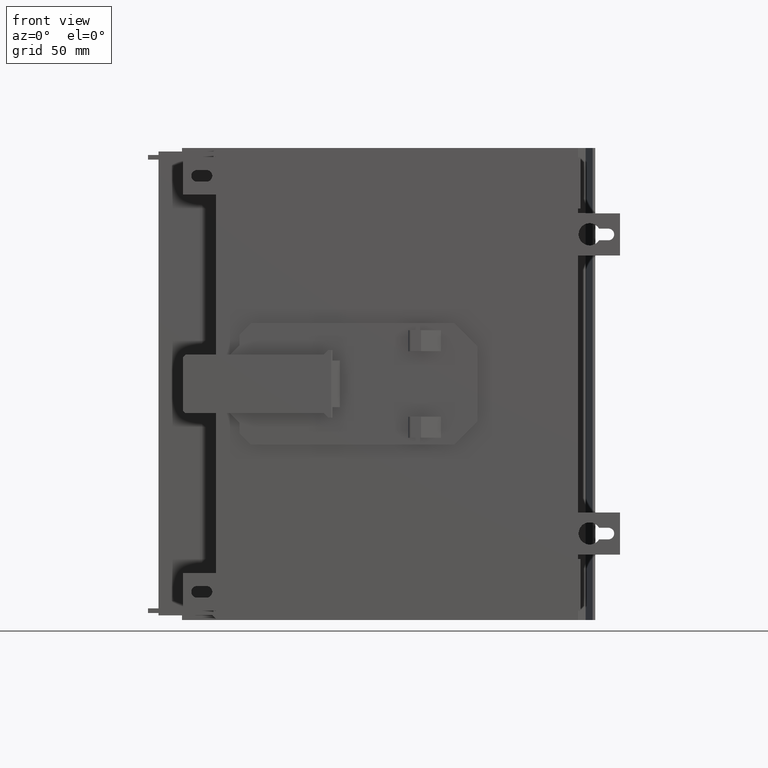
[diagram: clean part render]
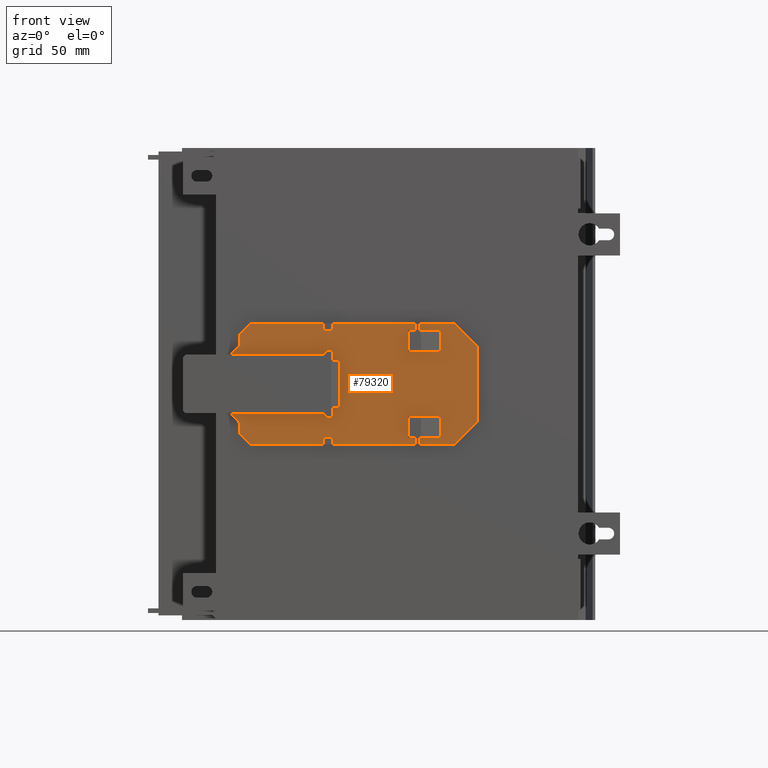
[diagram: same view with one face highlighted and labeled with its STEP entity id]
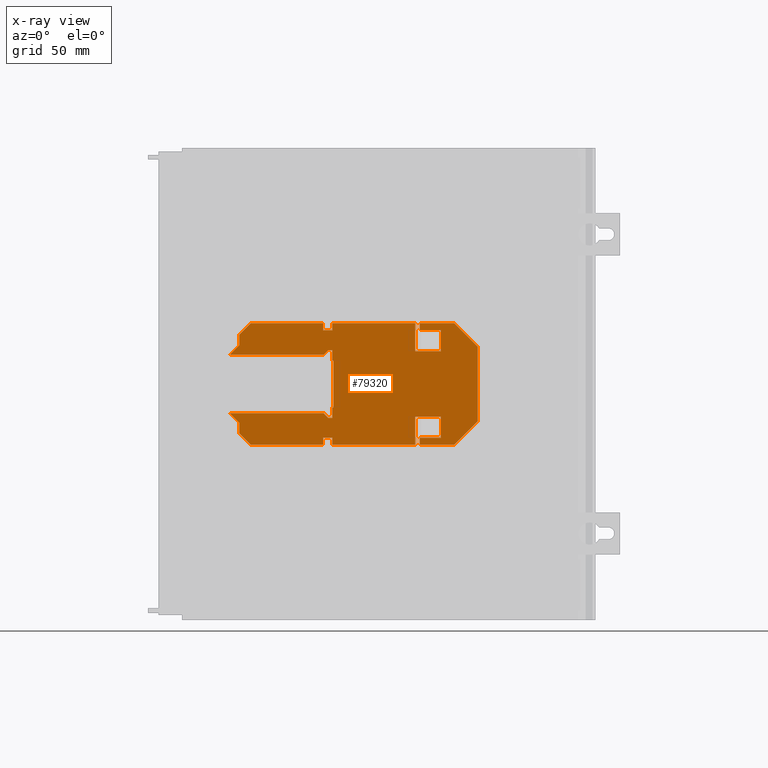
[diagram: x-ray of the same camera — body ghosted, the highlighted face saturated]
A machine part, front view. The second image highlights one B-rep face of the part: STEP entity #79320.
The next image is the same camera in x-ray: the body ghosted, the highlighted face saturated — about 0% of this face is hidden behind the body in this view.
In plain terms, the highlighted planar face has unit normal (0, -1, 0).
Its self-contained STEP definition (entity closure, byte-faithful):
#74370=CARTESIAN_POINT('',(4.,-4.,-5.04999999999997));
#74380=VERTEX_POINT('',#74370);
#74460=CARTESIAN_POINT('',(8.00000000000001,-4.,-9.04999999999998));
#74470=VERTEX_POINT('',#74460);
#74500=CARTESIAN_POINT('',(4.,-4.,-5.04999999999998));
#74510=DIRECTION('',(0.707106781186548,0.,-0.707106781186548));
#74520=VECTOR('',#74510,5.656854249492);
#74530=LINE('',#74500,#74520);
#74540=EDGE_CURVE('',#74380,#74470,#74530,.T.);
#74750=CARTESIAN_POINT('',(12.5,-4.,-9.04999999999998));
#74760=VERTEX_POINT('',#74750);
#74840=CARTESIAN_POINT('',(17.5,-4.,-14.05));
#74850=VERTEX_POINT('',#74840);
#74880=CARTESIAN_POINT('',(-8.5,-4.,11.95));
#74890=DIRECTION('',(-0.707106781186548,0.,0.707106781186548));
#74900=VECTOR('',#74890,1.);
#74910=LINE('',#74880,#74900);
#74920=EDGE_CURVE('',#74850,#74760,#74910,.T.);
#75130=CARTESIAN_POINT('',(17.5,-4.,-44.9));
#75140=VERTEX_POINT('',#75130);
#75190=CARTESIAN_POINT('',(17.5,-4.,-66.65));
#75200=DIRECTION('',(0.,0.,1.));
#75210=VECTOR('',#75200,1.);
#75220=LINE('',#75190,#75210);
#75230=EDGE_CURVE('',#75140,#74850,#75220,.T.);
#75310=CARTESIAN_POINT('',(17.5,-4.,-101.05));
#75320=VERTEX_POINT('',#75310);
#75350=CARTESIAN_POINT('',(17.5,-4.,-86.4));
#75360=VERTEX_POINT('',#75350);
#75370=EDGE_CURVE('',#75320,#75360,#75220,.T.);
#75590=CARTESIAN_POINT('',(17.5,-4.,-84.4));
#75600=VERTEX_POINT('',#75590);
#75630=CARTESIAN_POINT('',(17.5,-4.,-48.9));
#75640=VERTEX_POINT('',#75630);
#75650=EDGE_CURVE('',#75600,#75640,#75220,.T.);
#76000=CARTESIAN_POINT('',(-24.5,-4.,-111.05));
#76010=VERTEX_POINT('',#76000);
#76040=CARTESIAN_POINT('',(-8.5,-4.,-111.05));
#76050=DIRECTION('',(1.,0.,0.));
#76060=VECTOR('',#76050,1.);
#76070=LINE('',#76040,#76060);
#76080=CARTESIAN_POINT('',(7.50000000000001,-4.,-111.05));
#76090=VERTEX_POINT('',#76080);
#76100=EDGE_CURVE('',#76010,#76090,#76070,.T.);
#76380=CARTESIAN_POINT('',(-34.5,-4.,-101.05));
#76390=VERTEX_POINT('',#76380);
#76420=CARTESIAN_POINT('',(-8.5,-4.,-127.05));
#76430=DIRECTION('',(0.707106781186548,0.,-0.707106781186548));
#76440=VECTOR('',#76430,1.);
#76450=LINE('',#76420,#76440);
#76460=EDGE_CURVE('',#76390,#76010,#76450,.T.);
#76600=CARTESIAN_POINT('',(-2.15238799999999,-4.,-29.997329));
#76610=DIRECTION('',(0.,-1.,0.));
#76620=DIRECTION('',(0.,0.,-1.));
#76630=AXIS2_PLACEMENT_3D('',#76600,#76610,#76620);
#76640=PLANE('',#76630);
#76650=CARTESIAN_POINT('',(-8.5,-4.,-9.04999999999998));
#76660=DIRECTION('',(-1.,0.,0.));
#76670=VECTOR('',#76660,1.);
#76680=LINE('',#76650,#76670);
#76690=EDGE_CURVE('',#74760,#74470,#76680,.T.);
#76700=ORIENTED_EDGE('',*,*,#76690,.T.);
#76710=ORIENTED_EDGE('',*,*,#74920,.T.);
#76720=ORIENTED_EDGE('',*,*,#75230,.T.);
#76730=CARTESIAN_POINT('',(-8.5,-4.,-44.8999999999999));
#76740=DIRECTION('',(1.,0.,0.));
#76750=VECTOR('',#76740,1.);
#76760=LINE('',#76730,#76750);
#76770=CARTESIAN_POINT('',(14.5,-4.,-44.9));
#76780=VERTEX_POINT('',#76770);
#76790=EDGE_CURVE('',#76780,#75140,#76760,.T.);
#76800=ORIENTED_EDGE('',*,*,#76790,.T.);
#76810=CARTESIAN_POINT('',(14.5,-4.,-66.65));
#76820=DIRECTION('',(0.,0.,1.));
#76830=VECTOR('',#76820,1.);
#76840=LINE('',#76810,#76830);
#76850=CARTESIAN_POINT('',(14.5,-4.,-48.9));
#76860=VERTEX_POINT('',#76850);
#76870=EDGE_CURVE('',#76860,#76780,#76840,.T.);
#76880=ORIENTED_EDGE('',*,*,#76870,.T.);
#76890=CARTESIAN_POINT('',(-8.5,-4.,-48.9));
#76900=DIRECTION('',(-1.,0.,0.));
#76910=VECTOR('',#76900,1.);
#76920=LINE('',#76890,#76910);
#76930=EDGE_CURVE('',#75640,#76860,#76920,.T.);
#76940=ORIENTED_EDGE('',*,*,#76930,.T.);
#76950=ORIENTED_EDGE('',*,*,#75650,.T.);
#76960=CARTESIAN_POINT('',(-8.5,-4.,-84.4));
#76970=DIRECTION('',(1.,0.,0.));
#76980=VECTOR('',#76970,1.);
#76990=LINE('',#76960,#76980);
#77000=CARTESIAN_POINT('',(5.5,-4.,-84.4));
#77010=VERTEX_POINT('',#77000);
#77020=EDGE_CURVE('',#77010,#75600,#76990,.T.);
#77030=ORIENTED_EDGE('',*,*,#77020,.T.);
#77040=CARTESIAN_POINT('',(5.5,-4.,-66.65));
#77050=DIRECTION('',(0.,0.,-1.));
#77060=VECTOR('',#77050,1.);
#77070=LINE('',#77040,#77060);
#77080=CARTESIAN_POINT('',(5.5,-4.,-95.39999999999));
#77090=VERTEX_POINT('',#77080);
#77100=EDGE_CURVE('',#77010,#77090,#77070,.T.);
#77110=ORIENTED_EDGE('',*,*,#77100,.F.);
#77120=CARTESIAN_POINT('',(-8.5,-4.,-95.4));
#77130=DIRECTION('',(1.,0.,0.));
#77140=VECTOR('',#77130,1.);
#77150=LINE('',#77120,#77140);
#77160=CARTESIAN_POINT('',(14.5,-4.,-95.39999999999));
#77170=VERTEX_POINT('',#77160);
#77180=EDGE_CURVE('',#77090,#77170,#77150,.T.);
#77190=ORIENTED_EDGE('',*,*,#77180,.F.);
#77200=CARTESIAN_POINT('',(14.5,-4.,-66.65));
#77210=DIRECTION('',(0.,0.,1.));
#77220=VECTOR('',#77210,1.);
#77230=LINE('',#77200,#77220);
#77240=CARTESIAN_POINT('',(14.5,-4.,-86.4));
#77250=VERTEX_POINT('',#77240);
#77260=EDGE_CURVE('',#77170,#77250,#77230,.T.);
#77270=ORIENTED_EDGE('',*,*,#77260,.F.);
#77280=CARTESIAN_POINT('',(-8.5,-4.,-86.4));
#77290=DIRECTION('',(-1.,0.,0.));
#77300=VECTOR('',#77290,1.);
#77310=LINE('',#77280,#77300);
#77320=EDGE_CURVE('',#75360,#77250,#77310,.T.);
#77330=ORIENTED_EDGE('',*,*,#77320,.T.);
#77340=ORIENTED_EDGE('',*,*,#75370,.T.);
#77350=CARTESIAN_POINT('',(-8.5,-4.,-127.05));
#77360=DIRECTION('',(0.707106781186548,0.,0.707106781186548));
#77370=VECTOR('',#77360,1.);
#77380=LINE('',#77350,#77370);
#77390=EDGE_CURVE('',#76090,#75320,#77380,.T.);
#77400=ORIENTED_EDGE('',*,*,#77390,.T.);
#77410=ORIENTED_EDGE('',*,*,#76100,.T.);
#77420=ORIENTED_EDGE('',*,*,#76460,.T.);
#77430=CARTESIAN_POINT('',(-34.5,-4.,-66.65));
#77440=DIRECTION('',(0.,0.,-1.));
#77450=VECTOR('',#77440,1.);
#77460=LINE('',#77430,#77450);
#77470=CARTESIAN_POINT('',(-34.5,-4.,-86.4));
#77480=VERTEX_POINT('',#77470);
#77490=EDGE_CURVE('',#77480,#76390,#77460,.T.);
#77500=ORIENTED_EDGE('',*,*,#77490,.T.);
#77510=CARTESIAN_POINT('',(-8.5,-4.,-86.4));
#77520=DIRECTION('',(1.,0.,0.));
#77530=VECTOR('',#77520,1.);
#77540=LINE('',#77510,#77530);
#77550=CARTESIAN_POINT('',(-31.5,-4.,-86.4));
#77560=VERTEX_POINT('',#77550);
#77570=EDGE_CURVE('',#77480,#77560,#77540,.T.);
#77580=ORIENTED_EDGE('',*,*,#77570,.F.);
#77590=CARTESIAN_POINT('',(-31.5,-4.,-66.65));
#77600=DIRECTION('',(0.,0.,1.));
#77610=VECTOR('',#77600,1.);
#77620=LINE('',#77590,#77610);
#77630=CARTESIAN_POINT('',(-31.5,-4.,-95.4));
#77640=VERTEX_POINT('',#77630);
#77650=EDGE_CURVE('',#77640,#77560,#77620,.T.);
#77660=ORIENTED_EDGE('',*,*,#77650,.T.);
#77670=CARTESIAN_POINT('',(-8.5,-4.,-95.4));
#77680=DIRECTION('',(-1.,0.,0.));
#77690=VECTOR('',#77680,1.);
#77700=LINE('',#77670,#77690);
#77710=CARTESIAN_POINT('',(-22.5,-4.,-95.39999999999));
#77720=VERTEX_POINT('',#77710);
#77730=EDGE_CURVE('',#77720,#77640,#77700,.T.);
#77740=ORIENTED_EDGE('',*,*,#77730,.T.);
#77750=CARTESIAN_POINT('',(-22.5,-4.,-66.65));
#77760=DIRECTION('',(0.,0.,-1.));
#77770=VECTOR('',#77760,1.);
#77780=LINE('',#77750,#77770);
#77790=CARTESIAN_POINT('',(-22.5,-4.,-84.4));
#77800=VERTEX_POINT('',#77790);
#77810=EDGE_CURVE('',#77800,#77720,#77780,.T.);
#77820=ORIENTED_EDGE('',*,*,#77810,.T.);
#77830=CARTESIAN_POINT('',(-8.5,-4.,-84.4));
#77840=DIRECTION('',(-1.,0.,0.));
#77850=VECTOR('',#77840,1.);
#77860=LINE('',#77830,#77850);
#77870=CARTESIAN_POINT('',(-34.5,-4.,-84.4));
#77880=VERTEX_POINT('',#77870);
#77890=EDGE_CURVE('',#77800,#77880,#77860,.T.);
#77900=ORIENTED_EDGE('',*,*,#77890,.F.);
#77910=CARTESIAN_POINT('',(-34.5,-4.,-48.9));
#77920=VERTEX_POINT('',#77910);
#77930=EDGE_CURVE('',#77920,#77880,#77460,.T.);
#77940=ORIENTED_EDGE('',*,*,#77930,.T.);
#77950=CARTESIAN_POINT('',(-8.5,-4.,-48.9));
#77960=DIRECTION('',(1.,0.,0.));
#77970=VECTOR('',#77960,1.);
#77980=LINE('',#77950,#77970);
#77990=CARTESIAN_POINT('',(-31.5,-4.,-48.9));
#78000=VERTEX_POINT('',#77990);
#78010=EDGE_CURVE('',#77920,#78000,#77980,.T.);
#78020=ORIENTED_EDGE('',*,*,#78010,.F.);
#78030=CARTESIAN_POINT('',(-31.5,-4.,-66.65));
#78040=DIRECTION('',(0.,0.,1.));
#78050=VECTOR('',#78040,1.);
#78060=LINE('',#78030,#78050);
#78070=CARTESIAN_POINT('',(-31.5,-4.,-44.8999999999999));
#78080=VERTEX_POINT('',#78070);
#78090=EDGE_CURVE('',#78000,#78080,#78060,.T.);
#78100=ORIENTED_EDGE('',*,*,#78090,.F.);
#78110=CARTESIAN_POINT('',(-8.5,-4.,-44.8999999999999));
#78120=DIRECTION('',(-1.,0.,0.));
#78130=VECTOR('',#78120,1.);
#78140=LINE('',#78110,#78130);
#78150=CARTESIAN_POINT('',(-34.5,-4.,-44.8999999999999));
#78160=VERTEX_POINT('',#78150);
#78170=EDGE_CURVE('',#78080,#78160,#78140,.T.);
#78180=ORIENTED_EDGE('',*,*,#78170,.F.);
#78190=CARTESIAN_POINT('',(-34.5,-4.,-14.05));
#78200=VERTEX_POINT('',#78190);
#78210=EDGE_CURVE('',#78200,#78160,#77460,.T.);
#78220=ORIENTED_EDGE('',*,*,#78210,.T.);
#78230=CARTESIAN_POINT('',(-87.0999999999919,-4.,-66.65));
#78240=DIRECTION('',(-0.707106781186498,0.,-0.707106781186598));
#78250=VECTOR('',#78240,1.);
#78260=LINE('',#78230,#78250);
#78270=CARTESIAN_POINT('',(-29.5,-4.,-9.04999999999998));
#78280=VERTEX_POINT('',#78270);
#78290=EDGE_CURVE('',#78280,#78200,#78260,.T.);
#78300=ORIENTED_EDGE('',*,*,#78290,.T.);
#78310=CARTESIAN_POINT('',(-25.,-4.,-9.04999999999998));
#78320=VERTEX_POINT('',#78310);
#78330=EDGE_CURVE('',#78320,#78280,#76680,.T.);
#78340=ORIENTED_EDGE('',*,*,#78330,.T.);
#78350=CARTESIAN_POINT('',(-21.,-4.,-5.04999999999998));
#78360=DIRECTION('',(-0.707106781186548,0.,-0.707106781186548));
#78370=VECTOR('',#78360,5.656854249492);
#78380=LINE('',#78350,#78370);
#78390=CARTESIAN_POINT('',(-21.,-4.,-5.04999999999998));
#78400=VERTEX_POINT('',#78390);
#78410=EDGE_CURVE('',#78400,#78320,#78380,.T.);
#78420=ORIENTED_EDGE('',*,*,#78410,.T.);
#78430=CARTESIAN_POINT('',(-21.,-4.,-66.65));
#78440=DIRECTION('',(0.,0.,-1.));
#78450=VECTOR('',#78440,1.);
#78460=LINE('',#78430,#78450);
#78470=CARTESIAN_POINT('',(-21.,-4.,-45.1));
#78480=VERTEX_POINT('',#78470);
#78490=EDGE_CURVE('',#78400,#78480,#78460,.T.);
#78500=ORIENTED_EDGE('',*,*,#78490,.F.);
#78510=CARTESIAN_POINT('',(-42.549999999997,-4.,-66.65));
#78520=DIRECTION('',(-0.707106781186498,0.,-0.707106781186598));
#78530=VECTOR('',#78520,1.);
#78540=LINE('',#78510,#78530);
#78550=CARTESIAN_POINT('',(-23.0000000000049,-4.,-47.1000000000051));
#78560=VERTEX_POINT('',#78550);
#78570=EDGE_CURVE('',#78480,#78560,#78540,.T.);
#78580=ORIENTED_EDGE('',*,*,#78570,.F.);
#78590=CARTESIAN_POINT('',(-23.,-4.,-66.65));
#78600=DIRECTION('',(0.,0.,-1.));
#78610=VECTOR('',#78600,1.);
#78620=LINE('',#78590,#78610);
#78630=CARTESIAN_POINT('',(-23.,-4.,-48.9));
#78640=VERTEX_POINT('',#78630);
#78650=EDGE_CURVE('',#78560,#78640,#78620,.T.);
#78660=ORIENTED_EDGE('',*,*,#78650,.F.);
#78670=CARTESIAN_POINT('',(-8.5,-4.,-48.9));
#78680=DIRECTION('',(1.,0.,0.));
#78690=VECTOR('',#78680,1.);
#78700=LINE('',#78670,#78690);
#78710=CARTESIAN_POINT('',(-18.5,-4.,-48.9));
#78720=VERTEX_POINT('',#78710);
#78730=EDGE_CURVE('',#78640,#78720,#78700,.T.);
#78740=ORIENTED_EDGE('',*,*,#78730,.F.);
#78750=CARTESIAN_POINT('',(-18.4999999999998,-4.,-66.65));
#78760=DIRECTION('',(-1.577318208915E-14,0.,1.));
#78770=VECTOR('',#78760,1.);
#78780=LINE('',#78750,#78770);
#78790=CARTESIAN_POINT('',(-18.5,-4.,-49.4));
#78800=VERTEX_POINT('',#78790);
#78810=EDGE_CURVE('',#78800,#78720,#78780,.T.);
#78820=ORIENTED_EDGE('',*,*,#78810,.T.);
#78830=CARTESIAN_POINT('',(-8.5,-4.,-49.4));
#78840=DIRECTION('',(1.,0.,0.));
#78850=VECTOR('',#78840,1.);
#78860=LINE('',#78830,#78850);
#78870=CARTESIAN_POINT('',(1.5,-4.,-49.4));
#78880=VERTEX_POINT('',#78870);
#78890=EDGE_CURVE('',#78800,#78880,#78860,.T.);
#78900=ORIENTED_EDGE('',*,*,#78890,.F.);
#78910=CARTESIAN_POINT('',(1.5,-4.,-66.65));
#78920=DIRECTION('',(0.,0.,-1.));
#78930=VECTOR('',#78920,1.);
#78940=LINE('',#78910,#78930);
#78950=CARTESIAN_POINT('',(1.5,-4.,-48.9));
#78960=VERTEX_POINT('',#78950);
#78970=EDGE_CURVE('',#78960,#78880,#78940,.T.);
#78980=ORIENTED_EDGE('',*,*,#78970,.T.);
#78990=CARTESIAN_POINT('',(-8.5,-4.,-48.9));
#79000=DIRECTION('',(-1.,0.,0.));
#79010=VECTOR('',#79000,1.);
#79020=LINE('',#78990,#79010);
#79030=CARTESIAN_POINT('',(6.,-4.,-48.9));
#79040=VERTEX_POINT('',#79030);
#79050=EDGE_CURVE('',#79040,#78960,#79020,.T.);
#79060=ORIENTED_EDGE('',*,*,#79050,.T.);
#79070=CARTESIAN_POINT('',(6.,-4.,-66.65));
#79080=DIRECTION('',(0.,0.,-1.));
#79090=VECTOR('',#79080,1.);
#79100=LINE('',#79070,#79090);
#79110=CARTESIAN_POINT('',(6.00000000000486,-4.,-47.1000000000051));
#79120=VERTEX_POINT('',#79110);
#79130=EDGE_CURVE('',#79120,#79040,#79100,.T.);
#79140=ORIENTED_EDGE('',*,*,#79130,.T.);
#79150=CARTESIAN_POINT('',(25.549999999997,-4.,-66.65));
#79160=DIRECTION('',(0.707106781186498,0.,-0.707106781186598));
#79170=VECTOR('',#79160,1.);
#79180=LINE('',#79150,#79170);
#79190=CARTESIAN_POINT('',(4.,-4.,-45.1));
#79200=VERTEX_POINT('',#79190);
#79210=EDGE_CURVE('',#79200,#79120,#79180,.T.);
#79220=ORIENTED_EDGE('',*,*,#79210,.T.);
#79230=CARTESIAN_POINT('',(4.,-4.,-66.65));
#79240=DIRECTION('',(0.,0.,-1.));
#79250=VECTOR('',#79240,1.);
#79260=LINE('',#79230,#79250);
#79270=EDGE_CURVE('',#74380,#79200,#79260,.T.);
#79280=ORIENTED_EDGE('',*,*,#79270,.T.);
#79290=ORIENTED_EDGE('',*,*,#74540,.F.);
#79300=EDGE_LOOP('',(#79290,#79280,#79220,#79140,#79060,#78980,#78900,
#78820,#78740,#78660,#78580,#78500,#78420,#78340,#78300,#78220,#78180,
#78100,#78020,#77940,#77900,#77820,#77740,#77660,#77580,#77500,#77420,
#77410,#77400,#77340,#77330,#77270,#77190,#77110,#77030,#76950,#76940,
#76880,#76800,#76720,#76710,#76700));
#79310=FACE_OUTER_BOUND('',#79300,.T.);
#79320=ADVANCED_FACE('',(#79310),#76640,.T.);